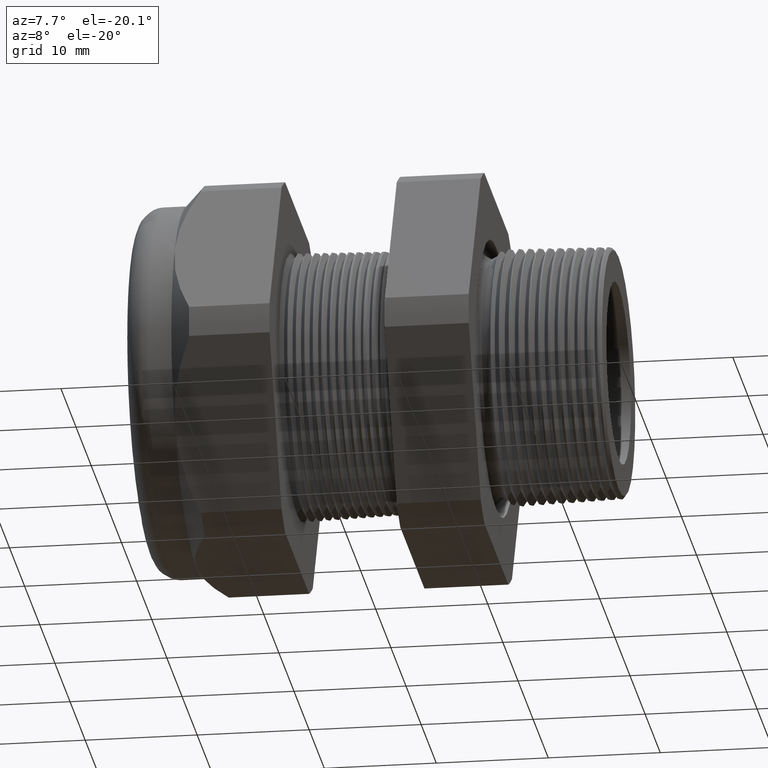
[diagram: clean part render]
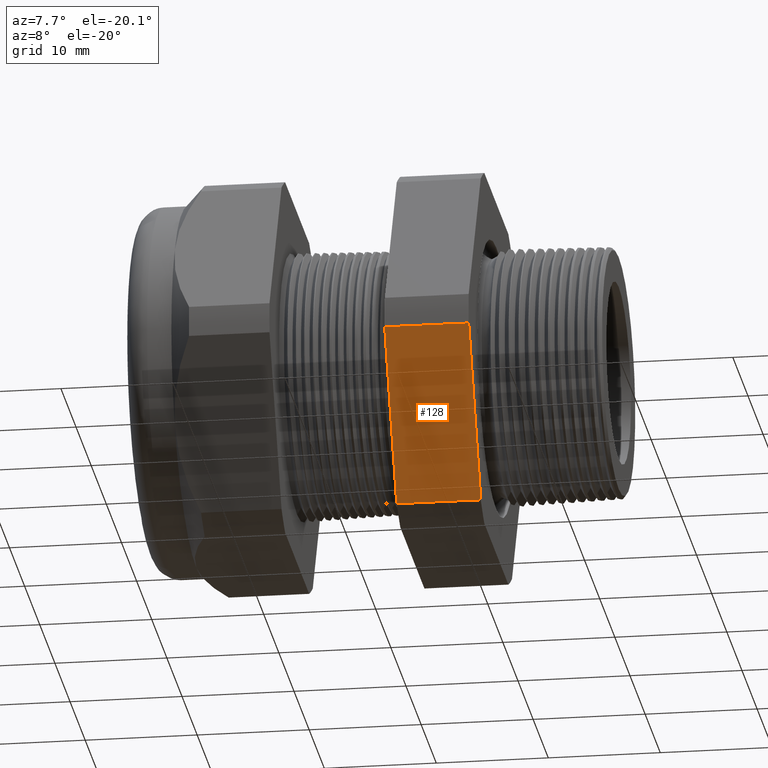
[diagram: same view with one face highlighted and labeled with its STEP entity id]
A machine part, auxiliary view. The second image highlights one B-rep face of the part: STEP entity #128.
In plain terms, the highlighted planar face has unit normal (0, -0.866, -0.5).
Its self-contained STEP definition (entity closure, byte-faithful):
#9 = VERTEX_POINT ( 'NONE', #901 ) ;
#12 = EDGE_CURVE ( 'NONE', #1659, #9, #962, .T. ) ;
#76 = VERTEX_POINT ( 'NONE', #1027 ) ;
#83 = VERTEX_POINT ( 'NONE', #1086 ) ;
#95 = ORIENTED_EDGE ( 'NONE', *, *, #4781, .F. ) ;
#102 = ORIENTED_EDGE ( 'NONE', *, *, #12, .F. ) ;
#105 = ORIENTED_EDGE ( 'NONE', *, *, #127, .F. ) ;
#109 = ORIENTED_EDGE ( 'NONE', *, *, #111, .T. ) ;
#111 = EDGE_CURVE ( 'NONE', #1659, #76, #1121, .T. ) ;
#121 = EDGE_LOOP ( 'NONE', ( #109, #95, #105, #102 ) ) ;
#127 = EDGE_CURVE ( 'NONE', #9, #83, #1159, .T. ) ;
#128 = ADVANCED_FACE ( 'NONE', ( #1155 ), #1154, .T. ) ;
#901 = CARTESIAN_POINT ( 'NONE',  ( -0.3100000000000000000, -0.4063420493440881300, -0.5961949252843793400 ) ) ;
#959 = DIRECTION ( 'NONE',  ( 0.0000000000000000000, 0.5000000000000001100, -0.8660254037844386000 ) ) ;
#960 = VECTOR ( 'NONE', #959, 39.37007874015748100 ) ;
#961 = CARTESIAN_POINT ( 'NONE',  ( -0.3100000000000000000, -0.2379165124598852700, -0.8879165124598854500 ) ) ;
#962 = LINE ( 'NONE', #961, #960 ) ;
#1027 = CARTESIAN_POINT ( 'NONE',  ( -0.6052755905511810800, -0.7194909755756819800, -0.05380507471562082100 ) ) ;
#1086 = CARTESIAN_POINT ( 'NONE',  ( -0.6052755905511810800, -0.4063420493440881300, -0.5961949252843793400 ) ) ;
#1118 = DIRECTION ( 'NONE',  ( -1.000000000000000000, 0.0000000000000000000, 0.0000000000000000000 ) ) ;
#1119 = VECTOR ( 'NONE', #1118, 39.37007874015748100 ) ;
#1120 = CARTESIAN_POINT ( 'NONE',  ( 0.1200000000000000900, -0.7194909755756819800, -0.05380507471562082100 ) ) ;
#1121 = LINE ( 'NONE', #1120, #1119 ) ;
#1150 = DIRECTION ( 'NONE',  ( 0.0000000000000000000, 0.5000000000000001100, -0.8660254037844386000 ) ) ;
#1151 = DIRECTION ( 'NONE',  ( 0.0000000000000000000, -0.8660254037844386000, -0.5000000000000001100 ) ) ;
#1152 = CARTESIAN_POINT ( 'NONE',  ( 0.1200000000000000900, -0.4063420493440883000, -0.5961949252843793400 ) ) ;
#1153 = AXIS2_PLACEMENT_3D ( 'NONE', #1152, #1151, #1150 ) ;
#1154 = PLANE ( 'NONE',  #1153 ) ;
#1155 = FACE_OUTER_BOUND ( 'NONE', #121, .T. ) ;
#1156 = DIRECTION ( 'NONE',  ( -1.000000000000000000, 0.0000000000000000000, 0.0000000000000000000 ) ) ;
#1157 = VECTOR ( 'NONE', #1156, 39.37007874015748100 ) ;
#1158 = CARTESIAN_POINT ( 'NONE',  ( 0.1200000000000000900, -0.4063420493440881300, -0.5961949252843793400 ) ) ;
#1159 = LINE ( 'NONE', #1158, #1157 ) ;
#1659 = VERTEX_POINT ( 'NONE', #2663 ) ;
#2663 = CARTESIAN_POINT ( 'NONE',  ( -0.3100000000000000000, -0.7194909755756819800, -0.05380507471562082100 ) ) ;
#2904 = DIRECTION ( 'NONE',  ( 0.0000000000000000000, -0.5000000000000001100, 0.8660254037844386000 ) ) ;
#2905 = VECTOR ( 'NONE', #2904, 39.37007874015748100 ) ;
#2906 = CARTESIAN_POINT ( 'NONE',  ( -0.6052755905511809600, -0.2379165124598852700, -0.8879165124598854500 ) ) ;
#2907 = LINE ( 'NONE', #2906, #2905 ) ;
#4781 = EDGE_CURVE ( 'NONE', #83, #76, #2907, .T. ) ;